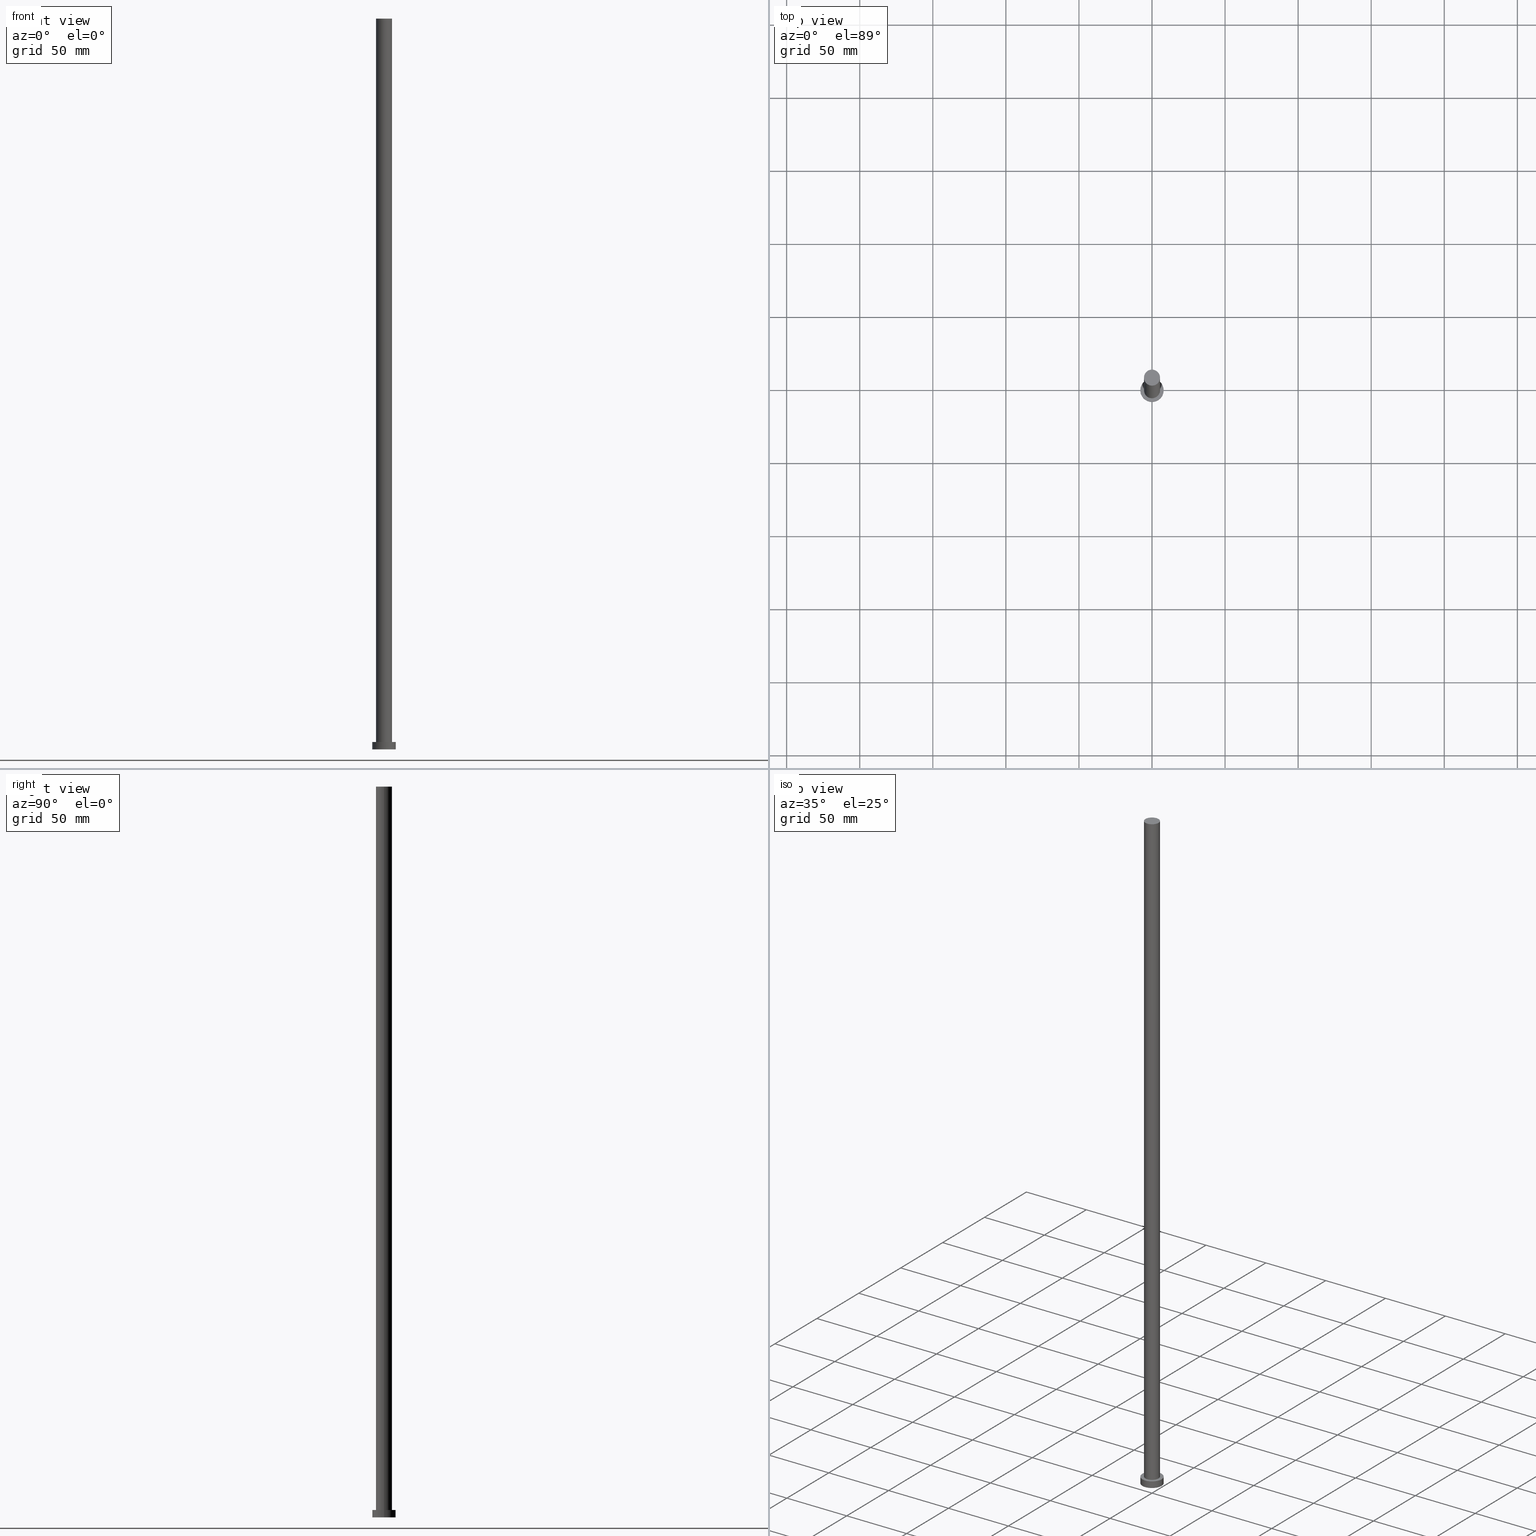
[diagram: canonical four-view strip — front | top / right | iso, engineering-drawing reading convention]
A machine part, canonical four-view strip (front | top / right | iso — engineering-drawing reading convention). The complete STEP part file that produces these views, byte-faithful:
ISO-10303-21;
HEADER;
FILE_DESCRIPTION (( 'STEP AP203' ),
    '1' );
FILE_NAME ('08bb.STEP',
    '2023-02-13T12:28:19',
    ( '' ),
    ( '' ),
    'SwSTEP 2.0',
    'SolidWorks 2019',
    '' );
FILE_SCHEMA (( 'CONFIG_CONTROL_DESIGN' ));
ENDSEC;

DATA;
#1 = PLANE ( 'NONE',  #105 ) ;
#2 = AXIS2_PLACEMENT_3D ( 'NONE', #160, #76, #120 ) ;
#3 = CARTESIAN_POINT ( 'NONE',  ( 0.000000000000000000, 0.000000000000000000, 5.000000000000000000 ) ) ;
#4 = ADVANCED_FACE ( 'NONE', ( #46, #230 ), #32, .T. ) ;
#5 = VERTEX_POINT ( 'NONE', #83 ) ;
#6 = CARTESIAN_POINT ( 'NONE',  ( -5.500000000000000000, 0.000000000000000000, 500.0000000000000000 ) ) ;
#7 = FACE_OUTER_BOUND ( 'NONE', #27, .T. ) ;
#8 = LINE ( 'NONE', #6, #42 ) ;
#9 = CARTESIAN_POINT ( 'NONE',  ( 0.000000000000000000, 0.000000000000000000, 0.000000000000000000 ) ) ;
#10 = COORDINATED_UNIVERSAL_TIME_OFFSET ( 1, 0, .AHEAD. ) ;
#11 = APPLICATION_PROTOCOL_DEFINITION ( 'international standard', 'config_control_design', 1994, #103 ) ;
#12 = PERSON_AND_ORGANIZATION ( #163, #174 ) ;
#13 = DATE_AND_TIME ( #192, #86 ) ;
#14 = DIRECTION ( 'NONE',  ( -0.000000000000000000, -0.000000000000000000, -1.000000000000000000 ) ) ;
#15 = CARTESIAN_POINT ( 'NONE',  ( 0.000000000000000000, 0.000000000000000000, 500.0000000000000000 ) ) ;
#16 = CIRCLE ( 'NONE', #2, 8.000000000000000000 ) ;
#17 = CIRCLE ( 'NONE', #211, 5.500000000000000000 ) ;
#18 = DIRECTION ( 'NONE',  ( 0.000000000000000000, 0.000000000000000000, 1.000000000000000000 ) ) ;
#19 = ORIENTED_EDGE ( 'NONE', *, *, #55, .T. ) ;
#20 = APPROVAL_DATE_TIME ( #81, #180 ) ;
#21 = CARTESIAN_POINT ( 'NONE',  ( 0.000000000000000000, 0.000000000000000000, 0.000000000000000000 ) ) ;
#22 = PRODUCT_RELATED_PRODUCT_CATEGORY ( 'detail', '', ( #110 ) ) ;
#23 = CIRCLE ( 'NONE', #64, 5.500000000000000000 ) ;
#24 = CALENDAR_DATE ( 2023, 13, 2 ) ;
#25 = APPROVAL_ROLE ( '' ) ;
#26 = APPROVAL_DATE_TIME ( #79, #205 ) ;
#27 = EDGE_LOOP ( 'NONE', ( #247, #141, #173, #236 ) ) ;
#28 = CC_DESIGN_SECURITY_CLASSIFICATION ( #234, ( #129 ) ) ;
#29 = ORIENTED_EDGE ( 'NONE', *, *, #49, .F. ) ;
#30 = ORIENTED_EDGE ( 'NONE', *, *, #178, .T. ) ;
#31 = CARTESIAN_POINT ( 'NONE',  ( 8.000000000000000000, 9.797174393178825657E-16, 5.000000000000000000 ) ) ;
#32 = PLANE ( 'NONE',  #228 ) ;
#33 = ORIENTED_EDGE ( 'NONE', *, *, #92, .T. ) ;
#34 = DIRECTION ( 'NONE',  ( -0.000000000000000000, -0.000000000000000000, -1.000000000000000000 ) ) ;
#35 = CC_DESIGN_APPROVAL ( #180, ( #234 ) ) ;
#36 =( NAMED_UNIT ( * ) SI_UNIT ( $, .STERADIAN. ) SOLID_ANGLE_UNIT ( ) );
#37 = CYLINDRICAL_SURFACE ( 'NONE', #104, 8.000000000000000000 ) ;
#38 = EDGE_CURVE ( 'NONE', #182, #5, #187, .T. ) ;
#39 = CYLINDRICAL_SURFACE ( 'NONE', #226, 5.500000000000000000 ) ;
#40 = PERSON_AND_ORGANIZATION ( #163, #174 ) ;
#41 = COORDINATED_UNIVERSAL_TIME_OFFSET ( 1, 0, .AHEAD. ) ;
#42 = VECTOR ( 'NONE', #146, 1000.000000000000000 ) ;
#43 = COORDINATED_UNIVERSAL_TIME_OFFSET ( 1, 0, .AHEAD. ) ;
#44 = EDGE_CURVE ( 'NONE', #219, #58, #167, .T. ) ;
#45 = DATE_AND_TIME ( #24, #221 ) ;
#46 = FACE_BOUND ( 'NONE', #62, .T. ) ;
#47 = PRODUCT_DEFINITION ( 'NEZN�M�', '', #129, #131 ) ;
#48 = AXIS2_PLACEMENT_3D ( 'NONE', #21, #195, #246 ) ;
#49 = EDGE_CURVE ( 'NONE', #134, #5, #8, .T. ) ;
#50 = EDGE_LOOP ( 'NONE', ( #216, #82 ) ) ;
#51 = CC_DESIGN_PERSON_AND_ORGANIZATION_ASSIGNMENT ( #123, #100, ( #129 ) ) ;
#52 = PRODUCT_DEFINITION_SHAPE ( 'NONE', 'NONE',  #47 ) ;
#53 = DIRECTION ( 'NONE',  ( -1.000000000000000000, 0.000000000000000000, 0.000000000000000000 ) ) ;
#54 = VECTOR ( 'NONE', #197, 1000.000000000000000 ) ;
#55 = EDGE_CURVE ( 'NONE', #112, #58, #16, .T. ) ;
#56 = DIRECTION ( 'NONE',  ( 0.000000000000000000, 0.000000000000000000, 1.000000000000000000 ) ) ;
#57 = APPROVAL_PERSON_ORGANIZATION ( #12, #205, #25 ) ;
#58 = VERTEX_POINT ( 'NONE', #206 ) ;
#59 =( NAMED_UNIT ( * ) PLANE_ANGLE_UNIT ( ) SI_UNIT ( $, .RADIAN. ) );
#60 = APPROVAL_STATUS ( 'not_yet_approved' ) ;
#61 = LINE ( 'NONE', #127, #147 ) ;
#62 = EDGE_LOOP ( 'NONE', ( #255, #84 ) ) ;
#63 = EDGE_LOOP ( 'NONE', ( #95, #33, #249, #29 ) ) ;
#64 = AXIS2_PLACEMENT_3D ( 'NONE', #15, #191, #87 ) ;
#65 = EDGE_CURVE ( 'NONE', #58, #112, #164, .T. ) ;
#66 = EDGE_LOOP ( 'NONE', ( #244, #151 ) ) ;
#67 = ORIENTED_EDGE ( 'NONE', *, *, #169, .T. ) ;
#68 = CARTESIAN_POINT ( 'NONE',  ( -5.500000000000000000, 0.000000000000000000, 500.0000000000000000 ) ) ;
#69 = AXIS2_PLACEMENT_3D ( 'NONE', #3, #184, #142 ) ;
#70 = CARTESIAN_POINT ( 'NONE',  ( 0.000000000000000000, 0.000000000000000000, 5.000000000000000000 ) ) ;
#71 = FACE_OUTER_BOUND ( 'NONE', #217, .T. ) ;
#72 = APPROVAL ( #223, 'NEUR�EN�' ) ;
#73 = PERSON_AND_ORGANIZATION ( #163, #174 ) ;
#74 = FACE_OUTER_BOUND ( 'NONE', #177, .T. ) ;
#75 = CARTESIAN_POINT ( 'NONE',  ( 0.000000000000000000, 0.000000000000000000, 500.0000000000000000 ) ) ;
#76 = DIRECTION ( 'NONE',  ( 0.000000000000000000, 0.000000000000000000, 1.000000000000000000 ) ) ;
#77 = MECHANICAL_CONTEXT ( 'NONE', #213, 'mechanical' ) ;
#78 = AXIS2_PLACEMENT_3D ( 'NONE', #232, #201, #139 ) ;
#79 = DATE_AND_TIME ( #124, #239 ) ;
#80 = DATE_AND_TIME ( #121, #243 ) ;
#81 = DATE_AND_TIME ( #185, #229 ) ;
#82 = ORIENTED_EDGE ( 'NONE', *, *, #55, .F. ) ;
#83 = CARTESIAN_POINT ( 'NONE',  ( -5.500000000000000000, 0.000000000000000000, 5.000000000000000000 ) ) ;
#84 = ORIENTED_EDGE ( 'NONE', *, *, #38, .F. ) ;
#85 = DIRECTION ( 'NONE',  ( 1.000000000000000000, 0.000000000000000000, 0.000000000000000000 ) ) ;
#86 = LOCAL_TIME ( 13, 28, 19.00000000000000000, #240 ) ;
#87 = DIRECTION ( 'NONE',  ( 1.000000000000000000, 0.000000000000000000, 0.000000000000000000 ) ) ;
#88 = UNCERTAINTY_MEASURE_WITH_UNIT (LENGTH_MEASURE( 1.000000000000000082E-05 ), #250, 'distance_accuracy_value', 'NONE');
#89 = ORIENTED_EDGE ( 'NONE', *, *, #199, .F. ) ;
#90 = CARTESIAN_POINT ( 'NONE',  ( 0.000000000000000000, 0.000000000000000000, 5.000000000000000000 ) ) ;
#91 = DIRECTION ( 'NONE',  ( 0.000000000000000000, 0.000000000000000000, 1.000000000000000000 ) ) ;
#92 = EDGE_CURVE ( 'NONE', #148, #182, #61, .T. ) ;
#93 = CARTESIAN_POINT ( 'NONE',  ( 0.000000000000000000, 0.000000000000000000, 5.000000000000000000 ) ) ;
#94 = DIRECTION ( 'NONE',  ( 1.000000000000000000, 0.000000000000000000, 0.000000000000000000 ) ) ;
#95 = ORIENTED_EDGE ( 'NONE', *, *, #178, .F. ) ;
#96 = DIRECTION ( 'NONE',  ( -1.000000000000000000, 0.000000000000000000, 0.000000000000000000 ) ) ;
#97 = ORIENTED_EDGE ( 'NONE', *, *, #169, .F. ) ;
#98 = CC_DESIGN_APPROVAL ( #205, ( #47 ) ) ;
#99 = DIRECTION ( 'NONE',  ( 1.000000000000000000, 0.000000000000000000, 0.000000000000000000 ) ) ;
#100 = PERSON_AND_ORGANIZATION_ROLE ( 'design_supplier' ) ;
#101 = PERSON_AND_ORGANIZATION ( #163, #174 ) ;
#102 = PERSON_AND_ORGANIZATION ( #163, #174 ) ;
#103 = APPLICATION_CONTEXT ( 'configuration controlled 3d designs of mechanical parts and assemblies' ) ;
#104 = AXIS2_PLACEMENT_3D ( 'NONE', #90, #202, #96 ) ;
#105 = AXIS2_PLACEMENT_3D ( 'NONE', #152, #56, #200 ) ;
#106 = DIRECTION ( 'NONE',  ( 1.000000000000000000, 0.000000000000000000, -0.000000000000000000 ) ) ;
#107 = CC_DESIGN_PERSON_AND_ORGANIZATION_ASSIGNMENT ( #118, #241, ( #129 ) ) ;
#108 = ORIENTED_EDGE ( 'NONE', *, *, #44, .F. ) ;
#109 = EDGE_CURVE ( 'NONE', #134, #148, #23, .T. ) ;
#110 = PRODUCT ( '08bb', '08bb', '', ( #77 ) ) ;
#111 = CARTESIAN_POINT ( 'NONE',  ( 0.000000000000000000, 0.000000000000000000, 500.0000000000000000 ) ) ;
#112 = VERTEX_POINT ( 'NONE', #175 ) ;
#113 = ADVANCED_BREP_SHAPE_REPRESENTATION ( '08bb', ( #155, #145 ), #207 ) ;
#114 = LINE ( 'NONE', #31, #54 ) ;
#115 = CLOSED_SHELL ( 'NONE', ( #137, #193, #209, #4, #117, #218, #122 ) ) ;
#116 = VERTEX_POINT ( 'NONE', #130 ) ;
#117 = ADVANCED_FACE ( 'NONE', ( #251 ), #215, .F. ) ;
#118 = PERSON_AND_ORGANIZATION ( #163, #174 ) ;
#119 = PERSON_AND_ORGANIZATION_ROLE ( 'creator' ) ;
#120 = DIRECTION ( 'NONE',  ( 1.000000000000000000, 0.000000000000000000, 0.000000000000000000 ) ) ;
#121 = CALENDAR_DATE ( 2023, 13, 2 ) ;
#122 = ADVANCED_FACE ( 'NONE', ( #71 ), #1, .T. ) ;
#123 = PERSON_AND_ORGANIZATION ( #163, #174 ) ;
#124 = CALENDAR_DATE ( 2023, 13, 2 ) ;
#125 = DATE_TIME_ROLE ( 'classification_date' ) ;
#126 = DIRECTION ( 'NONE',  ( 0.000000000000000000, 0.000000000000000000, 1.000000000000000000 ) ) ;
#127 = CARTESIAN_POINT ( 'NONE',  ( 5.500000000000000000, 6.735557395310442023E-16, 500.0000000000000000 ) ) ;
#128 = AXIS2_PLACEMENT_3D ( 'NONE', #171, #245, #99 ) ;
#129 = PRODUCT_DEFINITION_FORMATION_WITH_SPECIFIED_SOURCE ( 'LIBOVOLN�', '', #110, .NOT_KNOWN. ) ;
#130 = CARTESIAN_POINT ( 'NONE',  ( 8.000000000000000000, 9.797174393178825657E-16, 5.000000000000000000 ) ) ;
#131 = DESIGN_CONTEXT ( 'detailed design', #103, 'design' ) ;
#132 = ORIENTED_EDGE ( 'NONE', *, *, #44, .T. ) ;
#133 = CC_DESIGN_DATE_AND_TIME_ASSIGNMENT ( #13, #166, ( #47 ) ) ;
#134 = VERTEX_POINT ( 'NONE', #68 ) ;
#135 = CARTESIAN_POINT ( 'NONE',  ( 5.500000000000000000, 6.735557395310442023E-16, 500.0000000000000000 ) ) ;
#136 = CARTESIAN_POINT ( 'NONE',  ( -8.000000000000000000, 0.000000000000000000, 5.000000000000000000 ) ) ;
#137 = ADVANCED_FACE ( 'NONE', ( #233 ), #158, .T. ) ;
#138 = AXIS2_PLACEMENT_3D ( 'NONE', #203, #235, #157 ) ;
#139 = DIRECTION ( 'NONE',  ( 1.000000000000000000, 0.000000000000000000, -0.000000000000000000 ) ) ;
#140 = CC_DESIGN_PERSON_AND_ORGANIZATION_ASSIGNMENT ( #102, #208, ( #110 ) ) ;
#141 = ORIENTED_EDGE ( 'NONE', *, *, #109, .F. ) ;
#142 = DIRECTION ( 'NONE',  ( -1.000000000000000000, 0.000000000000000000, 0.000000000000000000 ) ) ;
#143 = CIRCLE ( 'NONE', #204, 5.500000000000000000 ) ;
#144 = SECURITY_CLASSIFICATION_LEVEL ( 'unclassified' ) ;
#145 = AXIS2_PLACEMENT_3D ( 'NONE', #9, #162, #188 ) ;
#146 = DIRECTION ( 'NONE',  ( -0.000000000000000000, -0.000000000000000000, -1.000000000000000000 ) ) ;
#147 = VECTOR ( 'NONE', #14, 1000.000000000000000 ) ;
#148 = VERTEX_POINT ( 'NONE', #135 ) ;
#149 = DIRECTION ( 'NONE',  ( 0.000000000000000000, 0.000000000000000000, 1.000000000000000000 ) ) ;
#150 = APPROVAL_PERSON_ORGANIZATION ( #168, #72, #225 ) ;
#151 = ORIENTED_EDGE ( 'NONE', *, *, #199, .T. ) ;
#152 = CARTESIAN_POINT ( 'NONE',  ( 0.000000000000000000, 0.000000000000000000, 500.0000000000000000 ) ) ;
#153 = EDGE_CURVE ( 'NONE', #219, #116, #253, .T. ) ;
#154 = CARTESIAN_POINT ( 'NONE',  ( 0.000000000000000000, 0.000000000000000000, 500.0000000000000000 ) ) ;
#155 = MANIFOLD_SOLID_BREP ( 'P�idat vysunut�m3', #115 ) ;
#156 = CC_DESIGN_PERSON_AND_ORGANIZATION_ASSIGNMENT ( #40, #119, ( #47 ) ) ;
#157 = DIRECTION ( 'NONE',  ( 1.000000000000000000, 0.000000000000000000, 0.000000000000000000 ) ) ;
#158 = CYLINDRICAL_SURFACE ( 'NONE', #231, 5.500000000000000000 ) ;
#159 = APPROVAL_DATE_TIME ( #80, #72 ) ;
#160 = CARTESIAN_POINT ( 'NONE',  ( 0.000000000000000000, 0.000000000000000000, 0.000000000000000000 ) ) ;
#161 = DIRECTION ( 'NONE',  ( -0.000000000000000000, -0.000000000000000000, -1.000000000000000000 ) ) ;
#162 = DIRECTION ( 'NONE',  ( 0.000000000000000000, 0.000000000000000000, 1.000000000000000000 ) ) ;
#163 = PERSON ( 'NEUR�EN�', 'NEUR�EN�', 'NEUR�EN�', ('NEUR�EN�'), ('NEUR�EN�'), ('NEUR�EN�') ) ;
#164 = CIRCLE ( 'NONE', #48, 8.000000000000000000 ) ;
#165 = SHAPE_DEFINITION_REPRESENTATION ( #52, #113 ) ;
#166 = DATE_TIME_ROLE ( 'creation_date' ) ;
#167 = LINE ( 'NONE', #242, #224 ) ;
#168 = PERSON_AND_ORGANIZATION ( #163, #174 ) ;
#169 = EDGE_CURVE ( 'NONE', #116, #112, #114, .T. ) ;
#170 = CC_DESIGN_PERSON_AND_ORGANIZATION_ASSIGNMENT ( #73, #181, ( #234 ) ) ;
#171 = CARTESIAN_POINT ( 'NONE',  ( 0.000000000000000000, 0.000000000000000000, 5.000000000000000000 ) ) ;
#172 = AXIS2_PLACEMENT_3D ( 'NONE', #70, #18, #94 ) ;
#173 = ORIENTED_EDGE ( 'NONE', *, *, #49, .T. ) ;
#174 = ORGANIZATION ( 'NEUR�EN�', 'NEUR�EN�', '' ) ;
#175 = CARTESIAN_POINT ( 'NONE',  ( 8.000000000000000000, 9.797174393178825657E-16, 0.000000000000000000 ) ) ;
#176 = CARTESIAN_POINT ( 'NONE',  ( 5.500000000000000000, 6.735557395310442023E-16, 5.000000000000000000 ) ) ;
#177 = EDGE_LOOP ( 'NONE', ( #97, #227, #132, #214 ) ) ;
#178 = EDGE_CURVE ( 'NONE', #148, #134, #143, .T. ) ;
#179 = CYLINDRICAL_SURFACE ( 'NONE', #69, 8.000000000000000000 ) ;
#180 = APPROVAL ( #60, 'NEUR�EN�' ) ;
#181 = PERSON_AND_ORGANIZATION_ROLE ( 'classification_officer' ) ;
#182 = VERTEX_POINT ( 'NONE', #176 ) ;
#183 = DIRECTION ( 'NONE',  ( -0.000000000000000000, -0.000000000000000000, -1.000000000000000000 ) ) ;
#184 = DIRECTION ( 'NONE',  ( -0.000000000000000000, -0.000000000000000000, -1.000000000000000000 ) ) ;
#185 = CALENDAR_DATE ( 2023, 13, 2 ) ;
#186 = COORDINATED_UNIVERSAL_TIME_OFFSET ( 1, 0, .AHEAD. ) ;
#187 = CIRCLE ( 'NONE', #128, 5.500000000000000000 ) ;
#188 = DIRECTION ( 'NONE',  ( 1.000000000000000000, 0.000000000000000000, 0.000000000000000000 ) ) ;
#189 = APPROVAL_ROLE ( '' ) ;
#190 = FACE_OUTER_BOUND ( 'NONE', #212, .T. ) ;
#191 = DIRECTION ( 'NONE',  ( 0.000000000000000000, 0.000000000000000000, 1.000000000000000000 ) ) ;
#192 = CALENDAR_DATE ( 2023, 13, 2 ) ;
#193 = ADVANCED_FACE ( 'NONE', ( #190 ), #37, .T. ) ;
#194 = CC_DESIGN_APPROVAL ( #72, ( #129 ) ) ;
#195 = DIRECTION ( 'NONE',  ( 0.000000000000000000, 0.000000000000000000, 1.000000000000000000 ) ) ;
#196 = APPROVAL_PERSON_ORGANIZATION ( #101, #180, #189 ) ;
#197 = DIRECTION ( 'NONE',  ( -0.000000000000000000, -0.000000000000000000, -1.000000000000000000 ) ) ;
#198 = CARTESIAN_POINT ( 'NONE',  ( 0.000000000000000000, 0.000000000000000000, 5.000000000000000000 ) ) ;
#199 = EDGE_CURVE ( 'NONE', #116, #219, #220, .T. ) ;
#200 = DIRECTION ( 'NONE',  ( 1.000000000000000000, 0.000000000000000000, -0.000000000000000000 ) ) ;
#201 = DIRECTION ( 'NONE',  ( 0.000000000000000000, 0.000000000000000000, 1.000000000000000000 ) ) ;
#202 = DIRECTION ( 'NONE',  ( -0.000000000000000000, -0.000000000000000000, -1.000000000000000000 ) ) ;
#203 = CARTESIAN_POINT ( 'NONE',  ( 0.000000000000000000, 0.000000000000000000, 5.000000000000000000 ) ) ;
#204 = AXIS2_PLACEMENT_3D ( 'NONE', #154, #91, #254 ) ;
#205 = APPROVAL ( #238, 'NEUR�EN�' ) ;
#206 = CARTESIAN_POINT ( 'NONE',  ( -8.000000000000000000, 0.000000000000000000, 0.000000000000000000 ) ) ;
#207 =( GEOMETRIC_REPRESENTATION_CONTEXT ( 3 ) GLOBAL_UNCERTAINTY_ASSIGNED_CONTEXT ( ( #88 ) ) GLOBAL_UNIT_ASSIGNED_CONTEXT ( ( #250, #59, #36 ) ) REPRESENTATION_CONTEXT ( 'NONE', 'WORKASPACE' ) );
#208 = PERSON_AND_ORGANIZATION_ROLE ( 'design_owner' ) ;
#209 = ADVANCED_FACE ( 'NONE', ( #74 ), #179, .T. ) ;
#210 = APPLICATION_PROTOCOL_DEFINITION ( 'international standard', 'config_control_design', 1994, #213 ) ;
#211 = AXIS2_PLACEMENT_3D ( 'NONE', #93, #149, #85 ) ;
#212 = EDGE_LOOP ( 'NONE', ( #89, #67, #19, #108 ) ) ;
#213 = APPLICATION_CONTEXT ( 'configuration controlled 3d designs of mechanical parts and assemblies' ) ;
#214 = ORIENTED_EDGE ( 'NONE', *, *, #65, .T. ) ;
#215 = PLANE ( 'NONE',  #78 ) ;
#216 = ORIENTED_EDGE ( 'NONE', *, *, #65, .F. ) ;
#217 = EDGE_LOOP ( 'NONE', ( #222, #30 ) ) ;
#218 = ADVANCED_FACE ( 'NONE', ( #7 ), #39, .T. ) ;
#219 = VERTEX_POINT ( 'NONE', #136 ) ;
#220 = CIRCLE ( 'NONE', #138, 8.000000000000000000 ) ;
#221 = LOCAL_TIME ( 13, 28, 19.00000000000000000, #10 ) ;
#222 = ORIENTED_EDGE ( 'NONE', *, *, #109, .T. ) ;
#223 = APPROVAL_STATUS ( 'not_yet_approved' ) ;
#224 = VECTOR ( 'NONE', #183, 1000.000000000000000 ) ;
#225 = APPROVAL_ROLE ( '' ) ;
#226 = AXIS2_PLACEMENT_3D ( 'NONE', #75, #161, #237 ) ;
#227 = ORIENTED_EDGE ( 'NONE', *, *, #153, .F. ) ;
#228 = AXIS2_PLACEMENT_3D ( 'NONE', #198, #126, #106 ) ;
#229 = LOCAL_TIME ( 13, 28, 19.00000000000000000, #186 ) ;
#230 = FACE_OUTER_BOUND ( 'NONE', #66, .T. ) ;
#231 = AXIS2_PLACEMENT_3D ( 'NONE', #111, #34, #53 ) ;
#232 = CARTESIAN_POINT ( 'NONE',  ( 0.000000000000000000, 0.000000000000000000, 0.000000000000000000 ) ) ;
#233 = FACE_OUTER_BOUND ( 'NONE', #63, .T. ) ;
#234 = SECURITY_CLASSIFICATION ( '', '', #144 ) ;
#235 = DIRECTION ( 'NONE',  ( 0.000000000000000000, 0.000000000000000000, 1.000000000000000000 ) ) ;
#236 = ORIENTED_EDGE ( 'NONE', *, *, #248, .T. ) ;
#237 = DIRECTION ( 'NONE',  ( -1.000000000000000000, 0.000000000000000000, 0.000000000000000000 ) ) ;
#238 = APPROVAL_STATUS ( 'not_yet_approved' ) ;
#239 = LOCAL_TIME ( 13, 28, 19.00000000000000000, #43 ) ;
#240 = COORDINATED_UNIVERSAL_TIME_OFFSET ( 1, 0, .AHEAD. ) ;
#241 = PERSON_AND_ORGANIZATION_ROLE ( 'creator' ) ;
#242 = CARTESIAN_POINT ( 'NONE',  ( -8.000000000000000000, 0.000000000000000000, 5.000000000000000000 ) ) ;
#243 = LOCAL_TIME ( 13, 28, 19.00000000000000000, #41 ) ;
#244 = ORIENTED_EDGE ( 'NONE', *, *, #153, .T. ) ;
#245 = DIRECTION ( 'NONE',  ( 0.000000000000000000, 0.000000000000000000, 1.000000000000000000 ) ) ;
#246 = DIRECTION ( 'NONE',  ( 1.000000000000000000, 0.000000000000000000, 0.000000000000000000 ) ) ;
#247 = ORIENTED_EDGE ( 'NONE', *, *, #92, .F. ) ;
#248 = EDGE_CURVE ( 'NONE', #5, #182, #17, .T. ) ;
#249 = ORIENTED_EDGE ( 'NONE', *, *, #38, .T. ) ;
#250 =( LENGTH_UNIT ( ) NAMED_UNIT ( * ) SI_UNIT ( .MILLI., .METRE. ) );
#251 = FACE_OUTER_BOUND ( 'NONE', #50, .T. ) ;
#252 = CC_DESIGN_DATE_AND_TIME_ASSIGNMENT ( #45, #125, ( #234 ) ) ;
#253 = CIRCLE ( 'NONE', #172, 8.000000000000000000 ) ;
#254 = DIRECTION ( 'NONE',  ( 1.000000000000000000, 0.000000000000000000, 0.000000000000000000 ) ) ;
#255 = ORIENTED_EDGE ( 'NONE', *, *, #248, .F. ) ;
ENDSEC;
END-ISO-10303-21;
